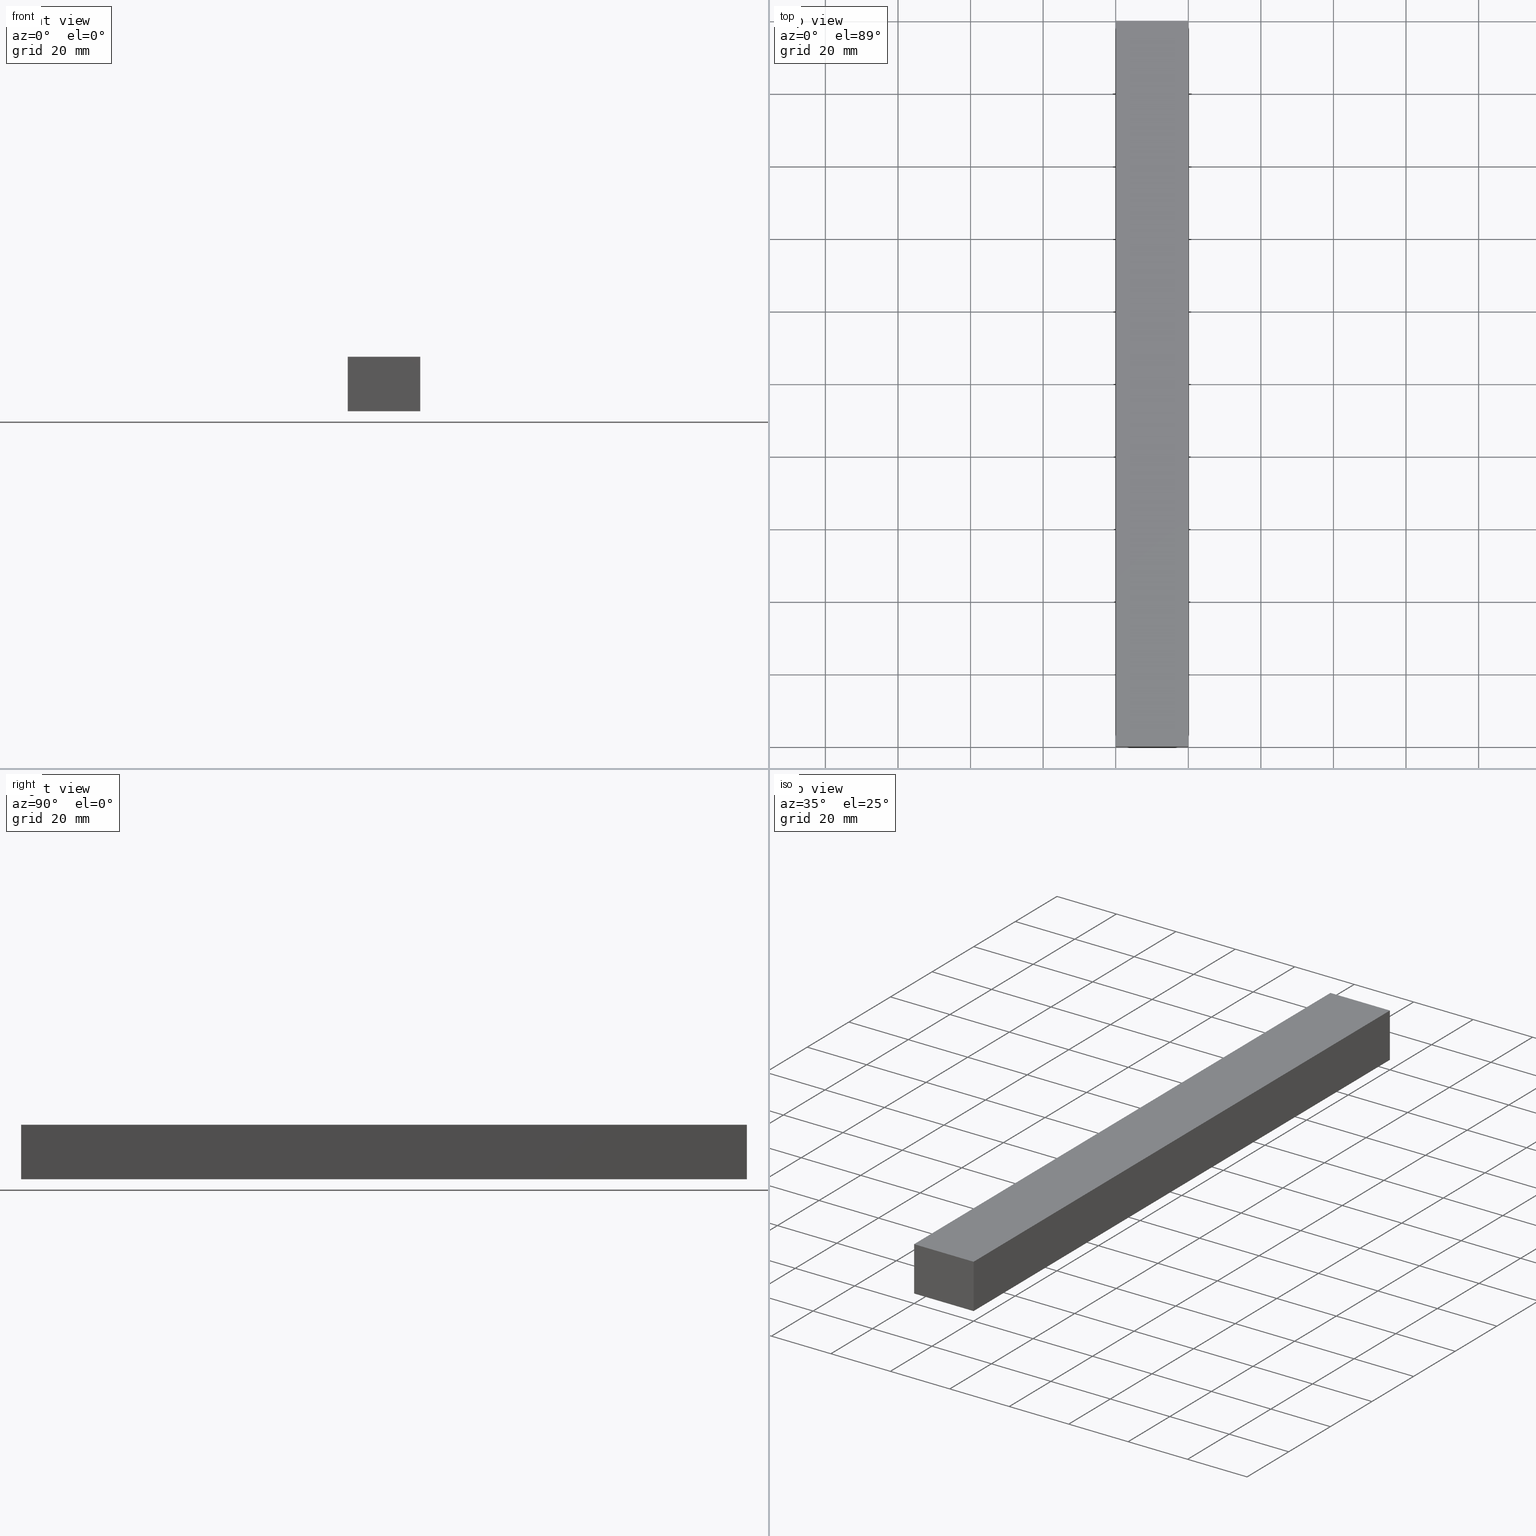
[diagram: canonical four-view strip — front | top / right | iso, engineering-drawing reading convention]
A machine part, canonical four-view strip (front | top / right | iso — engineering-drawing reading convention). The complete STEP part file that produces these views, byte-faithful:
ISO-10303-21;
HEADER;
FILE_DESCRIPTION (( 'STEP AP214' ),
    '1' );
FILE_NAME ('TM_340W_13.STEP',
    '2016-05-09T07:53:04',
    ( '' ),
    ( '' ),
    'SwSTEP 2.0',
    'SolidWorks 2015',
    '' );
FILE_SCHEMA (( 'AUTOMOTIVE_DESIGN' ));
ENDSEC;

DATA;
#1 = ORIENTED_EDGE ( 'NONE', *, *, #221, .T. ) ;
#2 = MANIFOLD_SOLID_BREP ( '���߰�1', #18 ) ;
#3 =( LENGTH_UNIT ( ) NAMED_UNIT ( * ) SI_UNIT ( .MILLI., .METRE. ) );
#4 = FACE_OUTER_BOUND ( 'NONE', #202, .T. ) ;
#5 = DIRECTION ( 'NONE',  ( 1.000000000000000000, 0.0000000000000000000, 0.0000000000000000000 ) ) ;
#6 = ADVANCED_FACE ( 'NONE', ( #65 ), #145, .F. ) ;
#7 = DIRECTION ( 'NONE',  ( -1.000000000000000000, 0.0000000000000000000, 0.0000000000000000000 ) ) ;
#8 = ADVANCED_FACE ( 'NONE', ( #199 ), #57, .T. ) ;
#9 =( LENGTH_UNIT ( ) NAMED_UNIT ( * ) SI_UNIT ( .MILLI., .METRE. ) );
#10 = CARTESIAN_POINT ( 'NONE',  ( 0.0000000000000000000, 0.0000000000000000000, 0.0000000000000000000 ) ) ;
#11 = DIRECTION ( 'NONE',  ( 0.0000000000000000000, 0.0000000000000000000, 1.000000000000000000 ) ) ;
#12 = VECTOR ( 'NONE', #43, 1000.000000000000000 ) ;
#13 = CARTESIAN_POINT ( 'NONE',  ( 0.0000000000000000000, 200.0000000000000000, 0.0000000000000000000 ) ) ;
#14 = LINE ( 'NONE', #97, #113 ) ;
#15 = CARTESIAN_POINT ( 'NONE',  ( 0.0000000000000000000, 0.0000000000000000000, 0.0000000000000000000 ) ) ;
#16 = ORIENTED_EDGE ( 'NONE', *, *, #104, .T. ) ;
#17 = APPLICATION_PROTOCOL_DEFINITION ( 'draft international standard', 'automotive_design', 1998, #219 ) ;
#18 = CLOSED_SHELL ( 'NONE', ( #91, #236, #191, #6, #8, #52 ) ) ;
#19 = FACE_OUTER_BOUND ( 'NONE', #101, .T. ) ;
#20 = MECHANICAL_DESIGN_GEOMETRIC_PRESENTATION_REPRESENTATION (  '', ( #98 ), #194 ) ;
#21 = PRODUCT_RELATED_PRODUCT_CATEGORY ( 'part', '', ( #146 ) ) ;
#22 =( NAMED_UNIT ( * ) SI_UNIT ( $, .STERADIAN. ) SOLID_ANGLE_UNIT ( ) );
#23 =( NAMED_UNIT ( * ) PLANE_ANGLE_UNIT ( ) SI_UNIT ( $, .RADIAN. ) );
#24 = AXIS2_PLACEMENT_3D ( 'NONE', #183, #171, #117 ) ;
#25 = VECTOR ( 'NONE', #71, 1000.000000000000000 ) ;
#26 =( NAMED_UNIT ( * ) SI_UNIT ( $, .STERADIAN. ) SOLID_ANGLE_UNIT ( ) );
#27 = APPLICATION_PROTOCOL_DEFINITION ( 'draft international standard', 'automotive_design', 1998, #68 ) ;
#28 = AXIS2_PLACEMENT_3D ( 'NONE', #115, #233, #228 ) ;
#29 = DIRECTION ( 'NONE',  ( 0.0000000000000000000, 0.0000000000000000000, 1.000000000000000000 ) ) ;
#30 = PRODUCT_DEFINITION ( 'UNKNOWN', '', #201, #163 ) ;
#31 = ORIENTED_EDGE ( 'NONE', *, *, #238, .T. ) ;
#32 = ORIENTED_EDGE ( 'NONE', *, *, #56, .F. ) ;
#33 = APPLICATION_CONTEXT ( 'automotive_design' ) ;
#34 = EDGE_LOOP ( 'NONE', ( #197, #32, #137, #75 ) ) ;
#35 = LINE ( 'NONE', #189, #12 ) ;
#36 = SHAPE_DEFINITION_REPRESENTATION ( #70, #127 ) ;
#37 = STYLED_ITEM ( 'NONE', ( #74 ), #76 ) ;
#38 = ORIENTED_EDGE ( 'NONE', *, *, #168, .F. ) ;
#39 =( LENGTH_UNIT ( ) NAMED_UNIT ( * ) SI_UNIT ( .MILLI., .METRE. ) );
#40 = EDGE_CURVE ( 'NONE', #178, #149, #72, .T. ) ;
#41 = CARTESIAN_POINT ( 'NONE',  ( 0.0000000000000000000, 0.0000000000000000000, 15.00000000000000000 ) ) ;
#42 = LINE ( 'NONE', #227, #181 ) ;
#43 = DIRECTION ( 'NONE',  ( 0.0000000000000000000, -1.000000000000000000, 0.0000000000000000000 ) ) ;
#44 = DIRECTION ( 'NONE',  ( 0.0000000000000000000, 0.0000000000000000000, -1.000000000000000000 ) ) ;
#45 = CARTESIAN_POINT ( 'NONE',  ( 0.0000000000000000000, 1000.000000000000000, 0.0000000000000000000 ) ) ;
#46 = PLANE ( 'NONE',  #54 ) ;
#47 =( NAMED_UNIT ( * ) PLANE_ANGLE_UNIT ( ) SI_UNIT ( $, .RADIAN. ) );
#48 =( NAMED_UNIT ( * ) SI_UNIT ( $, .STERADIAN. ) SOLID_ANGLE_UNIT ( ) );
#49 = DIRECTION ( 'NONE',  ( 1.000000000000000000, 0.0000000000000000000, 0.0000000000000000000 ) ) ;
#50 = DIRECTION ( 'NONE',  ( 1.000000000000000000, 0.0000000000000000000, 0.0000000000000000000 ) ) ;
#51 = SURFACE_STYLE_FILL_AREA ( #80 ) ;
#52 = ADVANCED_FACE ( 'NONE', ( #134 ), #147, .F. ) ;
#53 = FACE_OUTER_BOUND ( 'NONE', #34, .T. ) ;
#54 = AXIS2_PLACEMENT_3D ( 'NONE', #108, #232, #114 ) ;
#55 = UNCERTAINTY_MEASURE_WITH_UNIT (LENGTH_MEASURE( 1.000000000000000100E-005 ), #39, 'distance_accuracy_value', 'NONE');
#56 = EDGE_CURVE ( 'NONE', #158, #178, #73, .T. ) ;
#57 = PLANE ( 'NONE',  #226 ) ;
#58 = CARTESIAN_POINT ( 'NONE',  ( 20.00000000000000000, 0.0000000000000000000, 15.00000000000000000 ) ) ;
#59 = LINE ( 'NONE', #61, #188 ) ;
#60 = APPLICATION_PROTOCOL_DEFINITION ( 'draft international standard', 'automotive_design', 1998, #33 ) ;
#61 = CARTESIAN_POINT ( 'NONE',  ( 0.0000000000000000000, 200.0000000000000000, 15.00000000000000000 ) ) ;
#62 = AXIS2_PLACEMENT_3D ( 'NONE', #166, #29, #49 ) ;
#63 = VECTOR ( 'NONE', #84, 1000.000000000000000 ) ;
#64 = CARTESIAN_POINT ( 'NONE',  ( 20.00000000000000000, 200.0000000000000000, 15.00000000000000000 ) ) ;
#65 = FACE_OUTER_BOUND ( 'NONE', #231, .T. ) ;
#66 = DIRECTION ( 'NONE',  ( 1.000000000000000000, 0.0000000000000000000, 0.0000000000000000000 ) ) ;
#67 = VECTOR ( 'NONE', #136, 1000.000000000000000 ) ;
#68 = APPLICATION_CONTEXT ( 'automotive_design' ) ;
#69 = PRODUCT_DEFINITION_CONTEXT ( 'detailed design', #138, 'design' ) ;
#70 = PRODUCT_DEFINITION_SHAPE ( 'NONE', 'NONE',  #30 ) ;
#71 = DIRECTION ( 'NONE',  ( 0.0000000000000000000, 0.0000000000000000000, -1.000000000000000000 ) ) ;
#72 = LINE ( 'NONE', #169, #164 ) ;
#73 = LINE ( 'NONE', #112, #63 ) ;
#74 = PRESENTATION_STYLE_ASSIGNMENT (( #185 ) ) ;
#75 = ORIENTED_EDGE ( 'NONE', *, *, #87, .T. ) ;
#76 = ADVANCED_BREP_SHAPE_REPRESENTATION ( '', ( #2, #62 ), #204 ) ;
#77 =( GEOMETRIC_REPRESENTATION_CONTEXT ( 3 ) GLOBAL_UNCERTAINTY_ASSIGNED_CONTEXT ( ( #83 ) ) GLOBAL_UNIT_ASSIGNED_CONTEXT ( ( #9, #206, #48 ) ) REPRESENTATION_CONTEXT ( 'NONE', 'WORKASPACE' ) );
#78 = CARTESIAN_POINT ( 'NONE',  ( 0.0000000000000000000, 200.0000000000000000, 0.0000000000000000000 ) ) ;
#79 = PLANE ( 'NONE',  #28 ) ;
#80 = FILL_AREA_STYLE ('',( #153 ) ) ;
#81 = AXIS2_PLACEMENT_3D ( 'NONE', #128, #92, #82 ) ;
#82 = DIRECTION ( 'NONE',  ( -1.000000000000000000, 0.0000000000000000000, 0.0000000000000000000 ) ) ;
#83 = UNCERTAINTY_MEASURE_WITH_UNIT (LENGTH_MEASURE( 1.000000000000000100E-005 ), #9, 'distance_accuracy_value', 'NONE');
#84 = DIRECTION ( 'NONE',  ( 0.0000000000000000000, -1.000000000000000000, 0.0000000000000000000 ) ) ;
#85 = PRODUCT_CONTEXT ( 'NONE', #219, 'mechanical' ) ;
#86 = APPLICATION_PROTOCOL_DEFINITION ( 'draft international standard', 'automotive_design', 1998, #138 ) ;
#87 = EDGE_CURVE ( 'NONE', #167, #213, #102, .T. ) ;
#88 = LINE ( 'NONE', #214, #156 ) ;
#89 = PRESENTATION_STYLE_ASSIGNMENT (( #192 ) ) ;
#90 = LINE ( 'NONE', #220, #170 ) ;
#91 = ADVANCED_FACE ( 'NONE', ( #19 ), #94, .F. ) ;
#92 = DIRECTION ( 'NONE',  ( 0.0000000000000000000, 0.0000000000000000000, -1.000000000000000000 ) ) ;
#93 =( REPRESENTATION_RELATIONSHIP ('NONE','NONE', #217, #127 ) REPRESENTATION_RELATIONSHIP_WITH_TRANSFORMATION ( #209 )SHAPE_REPRESENTATION_RELATIONSHIP( ) );
#94 = PLANE ( 'NONE',  #81 ) ;
#95 = DIRECTION ( 'NONE',  ( -1.000000000000000000, 0.0000000000000000000, 0.0000000000000000000 ) ) ;
#96 = ORIENTED_EDGE ( 'NONE', *, *, #40, .F. ) ;
#97 = CARTESIAN_POINT ( 'NONE',  ( 0.0000000000000000000, 200.0000000000000000, 0.0000000000000000000 ) ) ;
#98 = STYLED_ITEM ( 'NONE', ( #89 ), #2 ) ;
#99 = FILL_AREA_STYLE ('',( #172 ) ) ;
#100 = PRODUCT_DEFINITION ( 'UNKNOWN', '', #200, #69 ) ;
#101 = EDGE_LOOP ( 'NONE', ( #109, #198, #222, #234 ) ) ;
#102 = LINE ( 'NONE', #129, #126 ) ;
#103 = EDGE_CURVE ( 'NONE', #167, #158, #88, .T. ) ;
#104 = EDGE_CURVE ( 'NONE', #140, #177, #35, .T. ) ;
#105 = SHAPE_REPRESENTATION_RELATIONSHIP ( 'NONE' , 'NONE' ,  #127, #76 ) ;
#106 = DIRECTION ( 'NONE',  ( 1.000000000000000000, 0.0000000000000000000, 0.0000000000000000000 ) ) ;
#107 = AXIS2_PLACEMENT_3D ( 'NONE', #148, #132, #130 ) ;
#108 = CARTESIAN_POINT ( 'NONE',  ( 20.00000000000000000, 1000.000000000000000, 0.0000000000000000000 ) ) ;
#109 = ORIENTED_EDGE ( 'NONE', *, *, #154, .T. ) ;
#110 = CARTESIAN_POINT ( 'NONE',  ( 0.0000000000000000000, 0.0000000000000000000, 0.0000000000000000000 ) ) ;
#111 = DIRECTION ( 'NONE',  ( 1.000000000000000000, 0.0000000000000000000, 0.0000000000000000000 ) ) ;
#112 = CARTESIAN_POINT ( 'NONE',  ( 0.0000000000000000000, 1000.000000000000000, 0.0000000000000000000 ) ) ;
#113 = VECTOR ( 'NONE', #135, 1000.000000000000000 ) ;
#114 = DIRECTION ( 'NONE',  ( 1.000000000000000000, 0.0000000000000000000, 0.0000000000000000000 ) ) ;
#115 = CARTESIAN_POINT ( 'NONE',  ( 20.00000000000000000, 1000.000000000000000, 15.00000000000000000 ) ) ;
#116 = CARTESIAN_POINT ( 'NONE',  ( 0.0000000000000000000, 1000.000000000000000, 15.00000000000000000 ) ) ;
#117 = DIRECTION ( 'NONE',  ( 1.000000000000000000, 0.0000000000000000000, 0.0000000000000000000 ) ) ;
#118 = ORIENTED_EDGE ( 'NONE', *, *, #212, .F. ) ;
#119 =( GEOMETRIC_REPRESENTATION_CONTEXT ( 3 ) GLOBAL_UNCERTAINTY_ASSIGNED_CONTEXT ( ( #55 ) ) GLOBAL_UNIT_ASSIGNED_CONTEXT ( ( #39, #23, #22 ) ) REPRESENTATION_CONTEXT ( 'NONE', 'WORKASPACE' ) );
#120 = LINE ( 'NONE', #116, #67 ) ;
#121 = EDGE_LOOP ( 'NONE', ( #31, #1, #205, #155 ) ) ;
#122 = UNCERTAINTY_MEASURE_WITH_UNIT (LENGTH_MEASURE( 1.000000000000000100E-005 ), #216, 'distance_accuracy_value', 'NONE');
#123 = COLOUR_RGB ( '',0.7921568627450980000, 0.8196078431372548800, 0.9333333333333333500 ) ;
#124 = ORIENTED_EDGE ( 'NONE', *, *, #87, .F. ) ;
#125 = ORIENTED_EDGE ( 'NONE', *, *, #40, .T. ) ;
#126 = VECTOR ( 'NONE', #143, 1000.000000000000000 ) ;
#127 = SHAPE_REPRESENTATION ( 'rubber foam', ( #62 ), #204 ) ;
#128 = CARTESIAN_POINT ( 'NONE',  ( 0.0000000000000000000, 1000.000000000000000, 15.00000000000000000 ) ) ;
#129 = CARTESIAN_POINT ( 'NONE',  ( 20.00000000000000000, 1000.000000000000000, 0.0000000000000000000 ) ) ;
#130 = DIRECTION ( 'NONE',  ( 1.000000000000000000, 0.0000000000000000000, 0.0000000000000000000 ) ) ;
#131 = PRODUCT ( 'rubber foam', 'rubber foam', '', ( #225 ) ) ;
#132 = DIRECTION ( 'NONE',  ( -0.0000000000000000000, 1.000000000000000000, 0.0000000000000000000 ) ) ;
#133 = ORIENTED_EDGE ( 'NONE', *, *, #223, .F. ) ;
#134 = FACE_OUTER_BOUND ( 'NONE', #211, .T. ) ;
#135 = DIRECTION ( 'NONE',  ( 0.0000000000000000000, 0.0000000000000000000, 1.000000000000000000 ) ) ;
#136 = DIRECTION ( 'NONE',  ( 0.0000000000000000000, -1.000000000000000000, 0.0000000000000000000 ) ) ;
#137 = ORIENTED_EDGE ( 'NONE', *, *, #103, .F. ) ;
#138 = APPLICATION_CONTEXT ( 'automotive_design' ) ;
#139 = SURFACE_SIDE_STYLE ('',( #51 ) ) ;
#140 = VERTEX_POINT ( 'NONE', #64 ) ;
#141 = COLOUR_RGB ( '',0.7921568627450980000, 0.8196078431372548800, 0.9333333333333333500 ) ;
#142 =( NAMED_UNIT ( * ) SI_UNIT ( $, .STERADIAN. ) SOLID_ANGLE_UNIT ( ) );
#143 = DIRECTION ( 'NONE',  ( 0.0000000000000000000, -1.000000000000000000, 0.0000000000000000000 ) ) ;
#144 = PRODUCT_DEFINITION_SHAPE ( 'NONE', 'NONE',  #100 ) ;
#145 = PLANE ( 'NONE',  #162 ) ;
#146 = PRODUCT ( 'TM_340W_13', 'TM_340W_13', '', ( #85 ) ) ;
#147 = PLANE ( 'NONE',  #107 ) ;
#148 = CARTESIAN_POINT ( 'NONE',  ( 0.0000000000000000000, 0.0000000000000000000, 0.0000000000000000000 ) ) ;
#149 = VERTEX_POINT ( 'NONE', #180 ) ;
#150 = SURFACE_STYLE_FILL_AREA ( #99 ) ;
#151 = SURFACE_SIDE_STYLE ('',( #150 ) ) ;
#152 = AXIS2_PLACEMENT_3D ( 'NONE', #15, #11, #5 ) ;
#153 = FILL_AREA_STYLE_COLOUR ( '', #123 ) ;
#154 = EDGE_CURVE ( 'NONE', #149, #177, #176, .T. ) ;
#155 = ORIENTED_EDGE ( 'NONE', *, *, #229, .T. ) ;
#156 = VECTOR ( 'NONE', #95, 1000.000000000000000 ) ;
#157 = VERTEX_POINT ( 'NONE', #235 ) ;
#158 = VERTEX_POINT ( 'NONE', #78 ) ;
#159 = VECTOR ( 'NONE', #106, 1000.000000000000000 ) ;
#160 =( NAMED_UNIT ( * ) PLANE_ANGLE_UNIT ( ) SI_UNIT ( $, .RADIAN. ) );
#161 = ORIENTED_EDGE ( 'NONE', *, *, #154, .F. ) ;
#162 = AXIS2_PLACEMENT_3D ( 'NONE', #45, #66, #44 ) ;
#163 = PRODUCT_DEFINITION_CONTEXT ( 'detailed design', #33, 'design' ) ;
#164 = VECTOR ( 'NONE', #207, 1000.000000000000000 ) ;
#165 = DIRECTION ( 'NONE',  ( 0.0000000000000000000, 0.0000000000000000000, 1.000000000000000000 ) ) ;
#166 = CARTESIAN_POINT ( 'NONE',  ( 0.0000000000000000000, 0.0000000000000000000, 0.0000000000000000000 ) ) ;
#167 = VERTEX_POINT ( 'NONE', #195 ) ;
#168 = EDGE_CURVE ( 'NONE', #177, #213, #90, .T. ) ;
#169 = CARTESIAN_POINT ( 'NONE',  ( 0.0000000000000000000, 0.0000000000000000000, 0.0000000000000000000 ) ) ;
#170 = VECTOR ( 'NONE', #208, 1000.000000000000000 ) ;
#171 = DIRECTION ( 'NONE',  ( 0.0000000000000000000, 0.0000000000000000000, 1.000000000000000000 ) ) ;
#172 = FILL_AREA_STYLE_COLOUR ( '', #141 ) ;
#173 = PRESENTATION_LAYER_ASSIGNMENT (  '', '', ( #98 ) ) ;
#174 = UNCERTAINTY_MEASURE_WITH_UNIT (LENGTH_MEASURE( 1.000000000000000100E-005 ), #3, 'distance_accuracy_value', 'NONE');
#175 = ORIENTED_EDGE ( 'NONE', *, *, #221, .F. ) ;
#176 = LINE ( 'NONE', #41, #159 ) ;
#177 = VERTEX_POINT ( 'NONE', #58 ) ;
#178 = VERTEX_POINT ( 'NONE', #10 ) ;
#179 = CONTEXT_DEPENDENT_SHAPE_REPRESENTATION ( #93, #218 ) ;
#180 = CARTESIAN_POINT ( 'NONE',  ( 0.0000000000000000000, 0.0000000000000000000, 15.00000000000000000 ) ) ;
#181 = VECTOR ( 'NONE', #7, 1000.000000000000000 ) ;
#182 = SHAPE_DEFINITION_REPRESENTATION ( #144, #217 ) ;
#183 = CARTESIAN_POINT ( 'NONE',  ( 0.0000000000000000000, 0.0000000000000000000, 0.0000000000000000000 ) ) ;
#184 = MECHANICAL_DESIGN_GEOMETRIC_PRESENTATION_REPRESENTATION (  '', ( #37 ), #119 ) ;
#185 = SURFACE_STYLE_USAGE ( .BOTH. , #151 ) ;
#186 = DIRECTION ( 'NONE',  ( 1.000000000000000000, 0.0000000000000000000, 0.0000000000000000000 ) ) ;
#187 = DIRECTION ( 'NONE',  ( -0.0000000000000000000, 1.000000000000000000, 0.0000000000000000000 ) ) ;
#188 = VECTOR ( 'NONE', #111, 1000.000000000000000 ) ;
#189 = CARTESIAN_POINT ( 'NONE',  ( 20.00000000000000000, 1000.000000000000000, 15.00000000000000000 ) ) ;
#190 = LINE ( 'NONE', #196, #25 ) ;
#191 = ADVANCED_FACE ( 'NONE', ( #53 ), #46, .F. ) ;
#192 = SURFACE_STYLE_USAGE ( .BOTH. , #139 ) ;
#193 = CARTESIAN_POINT ( 'NONE',  ( 20.00000000000000000, 0.0000000000000000000, 0.0000000000000000000 ) ) ;
#194 =( GEOMETRIC_REPRESENTATION_CONTEXT ( 3 ) GLOBAL_UNCERTAINTY_ASSIGNED_CONTEXT ( ( #122 ) ) GLOBAL_UNIT_ASSIGNED_CONTEXT ( ( #216, #47, #142 ) ) REPRESENTATION_CONTEXT ( 'NONE', 'WORKASPACE' ) );
#195 = CARTESIAN_POINT ( 'NONE',  ( 20.00000000000000000, 200.0000000000000000, 0.0000000000000000000 ) ) ;
#196 = CARTESIAN_POINT ( 'NONE',  ( 20.00000000000000000, 200.0000000000000000, 15.00000000000000000 ) ) ;
#197 = ORIENTED_EDGE ( 'NONE', *, *, #212, .T. ) ;
#198 = ORIENTED_EDGE ( 'NONE', *, *, #104, .F. ) ;
#199 = FACE_OUTER_BOUND ( 'NONE', #121, .T. ) ;
#200 = PRODUCT_DEFINITION_FORMATION_WITH_SPECIFIED_SOURCE ( 'ANY', '', #146, .NOT_KNOWN. ) ;
#201 = PRODUCT_DEFINITION_FORMATION_WITH_SPECIFIED_SOURCE ( 'ANY', '', #131, .NOT_KNOWN. ) ;
#202 = EDGE_LOOP ( 'NONE', ( #237, #124, #175, #16 ) ) ;
#203 = PRESENTATION_LAYER_ASSIGNMENT (  '', '', ( #37 ) ) ;
#204 =( GEOMETRIC_REPRESENTATION_CONTEXT ( 3 ) GLOBAL_UNCERTAINTY_ASSIGNED_CONTEXT ( ( #174 ) ) GLOBAL_UNIT_ASSIGNED_CONTEXT ( ( #3, #160, #26 ) ) REPRESENTATION_CONTEXT ( 'NONE', 'WORKASPACE' ) );
#205 = ORIENTED_EDGE ( 'NONE', *, *, #103, .T. ) ;
#206 =( NAMED_UNIT ( * ) PLANE_ANGLE_UNIT ( ) SI_UNIT ( $, .RADIAN. ) );
#207 = DIRECTION ( 'NONE',  ( 0.0000000000000000000, 0.0000000000000000000, 1.000000000000000000 ) ) ;
#208 = DIRECTION ( 'NONE',  ( 0.0000000000000000000, 0.0000000000000000000, -1.000000000000000000 ) ) ;
#209 = ITEM_DEFINED_TRANSFORMATION ( 'NONE', 'NONE', #215,  #62 ) ;
#210 = PRODUCT_RELATED_PRODUCT_CATEGORY ( 'part', '', ( #131 ) ) ;
#211 = EDGE_LOOP ( 'NONE', ( #161, #96, #118, #38 ) ) ;
#212 = EDGE_CURVE ( 'NONE', #213, #178, #42, .T. ) ;
#213 = VERTEX_POINT ( 'NONE', #193 ) ;
#214 = CARTESIAN_POINT ( 'NONE',  ( 20.00000000000000000, 200.0000000000000000, 0.0000000000000000000 ) ) ;
#215 = AXIS2_PLACEMENT_3D ( 'NONE', #110, #165, #50 ) ;
#216 =( LENGTH_UNIT ( ) NAMED_UNIT ( * ) SI_UNIT ( .MILLI., .METRE. ) );
#217 = SHAPE_REPRESENTATION ( 'TM_340W_13', ( #24, #215 ), #77 ) ;
#218 = PRODUCT_DEFINITION_SHAPE ( 'NONE', 'NONE',  #239 ) ;
#219 = APPLICATION_CONTEXT ( 'automotive_design' ) ;
#220 = CARTESIAN_POINT ( 'NONE',  ( 20.00000000000000000, 0.0000000000000000000, 15.00000000000000000 ) ) ;
#221 = EDGE_CURVE ( 'NONE', #140, #167, #190, .T. ) ;
#222 = ORIENTED_EDGE ( 'NONE', *, *, #238, .F. ) ;
#223 = EDGE_CURVE ( 'NONE', #157, #149, #120, .T. ) ;
#224 = ORIENTED_EDGE ( 'NONE', *, *, #56, .T. ) ;
#225 = PRODUCT_CONTEXT ( 'NONE', #68, 'mechanical' ) ;
#226 = AXIS2_PLACEMENT_3D ( 'NONE', #13, #187, #186 ) ;
#227 = CARTESIAN_POINT ( 'NONE',  ( 20.00000000000000000, 0.0000000000000000000, 0.0000000000000000000 ) ) ;
#228 = DIRECTION ( 'NONE',  ( 0.0000000000000000000, 0.0000000000000000000, 1.000000000000000000 ) ) ;
#229 = EDGE_CURVE ( 'NONE', #158, #157, #14, .T. ) ;
#230 = ORIENTED_EDGE ( 'NONE', *, *, #229, .F. ) ;
#231 = EDGE_LOOP ( 'NONE', ( #125, #133, #230, #224 ) ) ;
#232 = DIRECTION ( 'NONE',  ( 0.0000000000000000000, 0.0000000000000000000, 1.000000000000000000 ) ) ;
#233 = DIRECTION ( 'NONE',  ( -1.000000000000000000, 0.0000000000000000000, 0.0000000000000000000 ) ) ;
#234 = ORIENTED_EDGE ( 'NONE', *, *, #223, .T. ) ;
#235 = CARTESIAN_POINT ( 'NONE',  ( 0.0000000000000000000, 200.0000000000000000, 15.00000000000000000 ) ) ;
#236 = ADVANCED_FACE ( 'NONE', ( #4 ), #79, .F. ) ;
#237 = ORIENTED_EDGE ( 'NONE', *, *, #168, .T. ) ;
#238 = EDGE_CURVE ( 'NONE', #157, #140, #59, .T. ) ;
#239 = NEXT_ASSEMBLY_USAGE_OCCURRENCE ( 'NAUO1', ' ', ' ', #100, #30, $ ) ;
ENDSEC;
END-ISO-10303-21;
